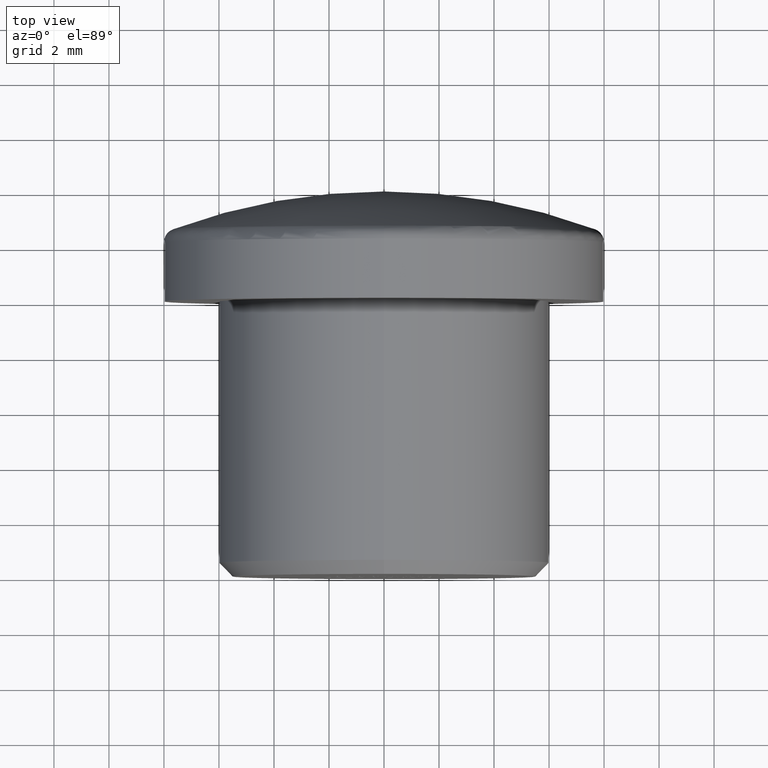
[diagram: clean part render]
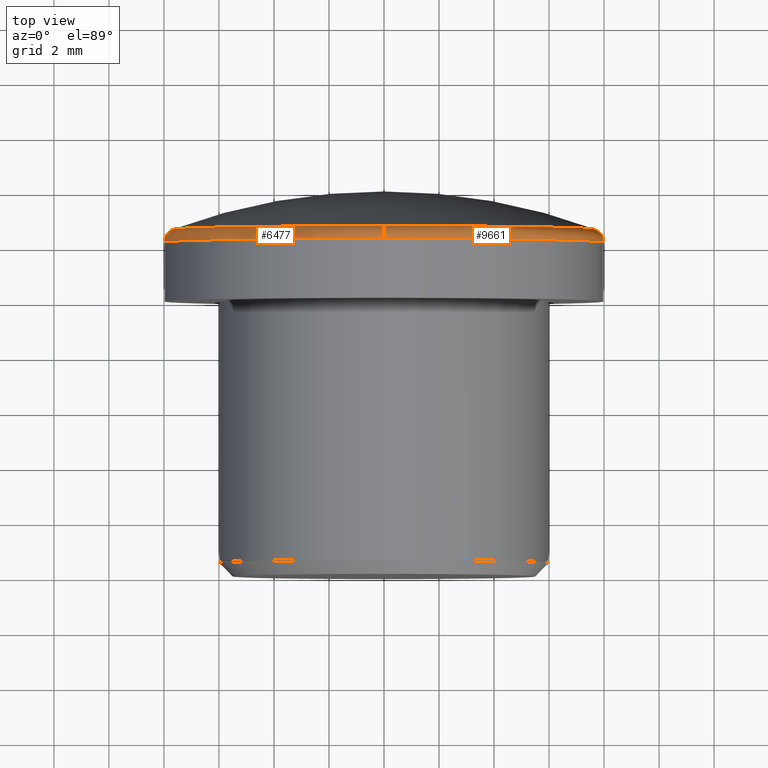
[diagram: same view with one multi-face feature highlighted, each face labeled with its STEP entity id]
A machine part, top view. The highlighted faces form ONE feature: a constant-radius fillet chain: 2 tangent blend faces with common blend radius 0.5 mm. The faces share edges in the B-rep.
Their STEP definitions:
[1] entity #6477 (Torus):
#1005 = ORIENTED_EDGE ( 'NONE', *, *, #7020, .T. ) ;
#1140 = CARTESIAN_POINT ( 'NONE',  ( 0.0000000000000000000, 12.62384527988033500, 0.0000000000000000000 ) ) ;
#1512 = CIRCLE ( 'NONE', #10745, 8.000000000000000000 ) ;
#1554 = DIRECTION ( 'NONE',  ( 0.0000000000000000000, 0.0000000000000000000, -1.000000000000000000 ) ) ;
#1599 = EDGE_CURVE ( 'NONE', #3514, #12723, #1512, .T. ) ;
#2567 = CARTESIAN_POINT ( 'NONE',  ( 0.0000000000000000000, 12.62384527988033500, 0.0000000000000000000 ) ) ;
#3363 = DIRECTION ( 'NONE',  ( -0.0000000000000000000, -1.000000000000000000, -0.0000000000000000000 ) ) ;
#3514 = VERTEX_POINT ( 'NONE', #12573 ) ;
#3549 = DIRECTION ( 'NONE',  ( 0.0000000000000000000, 0.0000000000000000000, 1.000000000000000000 ) ) ;
#3657 = EDGE_CURVE ( 'NONE', #5774, #14178, #13525, .T. ) ;
#3789 = EDGE_CURVE ( 'NONE', #14178, #3514, #14073, .T. ) ;
#4598 = AXIS2_PLACEMENT_3D ( 'NONE', #14996, #3363, #10336 ) ;
#4602 = DIRECTION ( 'NONE',  ( 0.0000000000000000000, 0.0000000000000000000, -1.000000000000000000 ) ) ;
#4621 = ORIENTED_EDGE ( 'NONE', *, *, #1599, .F. ) ;
#4713 = EDGE_CURVE ( 'NONE', #14953, #5774, #9209, .T. ) ;
#4755 = DIRECTION ( 'NONE',  ( 0.0000000000000000000, 1.000000000000000000, 0.0000000000000000000 ) ) ;
#5432 = CARTESIAN_POINT ( 'NONE',  ( 0.0000000000000000000, 12.62384527988033500, -7.673745173745172300 ) ) ;
#5541 = EDGE_LOOP ( 'NONE', ( #10857, #9216, #7227, #1005, #4621 ) ) ;
#5741 = DIRECTION ( 'NONE',  ( -1.000000000000000000, 0.0000000000000000000, 0.0000000000000000000 ) ) ;
#5774 = VERTEX_POINT ( 'NONE', #11785 ) ;
#6477 = ADVANCED_FACE ( 'NONE', ( #9686 ), #13444, .T. ) ;
#6557 = CIRCLE ( 'NONE', #8498, 0.5000000000000004400 ) ;
#7020 = EDGE_CURVE ( 'NONE', #14953, #12723, #6557, .T. ) ;
#7227 = ORIENTED_EDGE ( 'NONE', *, *, #4713, .F. ) ;
#7256 = DIRECTION ( 'NONE',  ( 1.000000000000000000, 0.0000000000000000000, -1.224646799147353200E-016 ) ) ;
#7392 = CARTESIAN_POINT ( 'NONE',  ( 0.0000000000000000000, 12.15500349995852000, -8.000000000000000000 ) ) ;
#7461 = DIRECTION ( 'NONE',  ( -1.224646799147351500E-016, 0.0000000000000000000, -1.000000000000000000 ) ) ;
#8498 = AXIS2_PLACEMENT_3D ( 'NONE', #12665, #5741, #3549 ) ;
#9209 = CIRCLE ( 'NONE', #11203, 7.673745173745172300 ) ;
#9216 = ORIENTED_EDGE ( 'NONE', *, *, #3657, .F. ) ;
#9686 = FACE_OUTER_BOUND ( 'NONE', #5541, .T. ) ;
#10336 = DIRECTION ( 'NONE',  ( 0.0000000000000000000, 0.0000000000000000000, -1.000000000000000000 ) ) ;
#10506 = DIRECTION ( 'NONE',  ( 0.0000000000000000000, 0.0000000000000000000, -1.000000000000000000 ) ) ;
#10641 = AXIS2_PLACEMENT_3D ( 'NONE', #12056, #7256, #7461 ) ;
#10745 = AXIS2_PLACEMENT_3D ( 'NONE', #13779, #11511, #10506 ) ;
#10857 = ORIENTED_EDGE ( 'NONE', *, *, #3789, .F. ) ;
#10860 = DIRECTION ( 'NONE',  ( 0.0000000000000000000, 1.000000000000000000, 0.0000000000000000000 ) ) ;
#11203 = AXIS2_PLACEMENT_3D ( 'NONE', #1140, #4755, #4602 ) ;
#11511 = DIRECTION ( 'NONE',  ( -0.0000000000000000000, -1.000000000000000000, -0.0000000000000000000 ) ) ;
#11785 = CARTESIAN_POINT ( 'NONE',  ( -7.673745173745177600, 12.62384527988033500, 9.397627464499482400E-016 ) ) ;
#12056 = CARTESIAN_POINT ( 'NONE',  ( 9.184850993605147900E-016, 12.15500349995852000, 7.500000000000000000 ) ) ;
#12573 = CARTESIAN_POINT ( 'NONE',  ( 9.797174393178825700E-016, 12.15500349995852000, 8.000000000000000000 ) ) ;
#12665 = CARTESIAN_POINT ( 'NONE',  ( 0.0000000000000000000, 12.15500349995852000, -7.500000000000000000 ) ) ;
#12723 = VERTEX_POINT ( 'NONE', #7392 ) ;
#13409 = CARTESIAN_POINT ( 'NONE',  ( 9.597400928839150100E-016, 12.62384527988033500, 7.673745173745172300 ) ) ;
#13444 = TOROIDAL_SURFACE ( 'NONE', #4598, 7.500000000000000000, 0.5000000000000000000 ) ;
#13525 = CIRCLE ( 'NONE', #14012, 7.673745173745172300 ) ;
#13779 = CARTESIAN_POINT ( 'NONE',  ( 0.0000000000000000000, 12.15500349995852000, 0.0000000000000000000 ) ) ;
#14012 = AXIS2_PLACEMENT_3D ( 'NONE', #2567, #10860, #1554 ) ;
#14073 = CIRCLE ( 'NONE', #10641, 0.5000000000000004400 ) ;
#14178 = VERTEX_POINT ( 'NONE', #13409 ) ;
#14953 = VERTEX_POINT ( 'NONE', #5432 ) ;
#14996 = CARTESIAN_POINT ( 'NONE',  ( 0.0000000000000000000, 12.15500349995852000, 0.0000000000000000000 ) ) ;
[2] entity #9661 (Torus):
#274 = ORIENTED_EDGE ( 'NONE', *, *, #7020, .F. ) ;
#630 = ORIENTED_EDGE ( 'NONE', *, *, #11838, .F. ) ;
#883 = VERTEX_POINT ( 'NONE', #5013 ) ;
#1144 = CARTESIAN_POINT ( 'NONE',  ( 0.0000000000000000000, 12.62384527988033500, 0.0000000000000000000 ) ) ;
#2170 = CARTESIAN_POINT ( 'NONE',  ( 0.0000000000000000000, 12.15500349995852000, 0.0000000000000000000 ) ) ;
#2382 = CARTESIAN_POINT ( 'NONE',  ( 0.0000000000000000000, 12.62384527988033500, 0.0000000000000000000 ) ) ;
#3514 = VERTEX_POINT ( 'NONE', #12573 ) ;
#3549 = DIRECTION ( 'NONE',  ( 0.0000000000000000000, 0.0000000000000000000, 1.000000000000000000 ) ) ;
#3789 = EDGE_CURVE ( 'NONE', #14178, #3514, #14073, .T. ) ;
#4245 = CIRCLE ( 'NONE', #7359, 8.000000000000000000 ) ;
#4472 = DIRECTION ( 'NONE',  ( 0.0000000000000000000, 0.0000000000000000000, -1.000000000000000000 ) ) ;
#5006 = DIRECTION ( 'NONE',  ( -0.0000000000000000000, -1.000000000000000000, -0.0000000000000000000 ) ) ;
#5013 = CARTESIAN_POINT ( 'NONE',  ( 7.673745173745177600, 12.62384527988033500, 0.0000000000000000000 ) ) ;
#5024 = AXIS2_PLACEMENT_3D ( 'NONE', #1144, #8226, #12854 ) ;
#5432 = CARTESIAN_POINT ( 'NONE',  ( 0.0000000000000000000, 12.62384527988033500, -7.673745173745172300 ) ) ;
#5562 = FACE_OUTER_BOUND ( 'NONE', #6006, .T. ) ;
#5741 = DIRECTION ( 'NONE',  ( -1.000000000000000000, 0.0000000000000000000, 0.0000000000000000000 ) ) ;
#6006 = EDGE_LOOP ( 'NONE', ( #11583, #10577, #14883, #274, #630 ) ) ;
#6557 = CIRCLE ( 'NONE', #8498, 0.5000000000000004400 ) ;
#6980 = AXIS2_PLACEMENT_3D ( 'NONE', #2382, #12938, #10588 ) ;
#7020 = EDGE_CURVE ( 'NONE', #14953, #12723, #6557, .T. ) ;
#7256 = DIRECTION ( 'NONE',  ( 1.000000000000000000, 0.0000000000000000000, -1.224646799147353200E-016 ) ) ;
#7341 = DIRECTION ( 'NONE',  ( 0.0000000000000000000, 0.0000000000000000000, -1.000000000000000000 ) ) ;
#7359 = AXIS2_PLACEMENT_3D ( 'NONE', #10794, #5006, #7341 ) ;
#7392 = CARTESIAN_POINT ( 'NONE',  ( 0.0000000000000000000, 12.15500349995852000, -8.000000000000000000 ) ) ;
#7461 = DIRECTION ( 'NONE',  ( -1.224646799147351500E-016, 0.0000000000000000000, -1.000000000000000000 ) ) ;
#7921 = CIRCLE ( 'NONE', #5024, 7.673745173745172300 ) ;
#8226 = DIRECTION ( 'NONE',  ( 0.0000000000000000000, 1.000000000000000000, 0.0000000000000000000 ) ) ;
#8498 = AXIS2_PLACEMENT_3D ( 'NONE', #12665, #5741, #3549 ) ;
#9661 = ADVANCED_FACE ( 'NONE', ( #5562 ), #11379, .T. ) ;
#10577 = ORIENTED_EDGE ( 'NONE', *, *, #3789, .T. ) ;
#10588 = DIRECTION ( 'NONE',  ( 0.0000000000000000000, 0.0000000000000000000, -1.000000000000000000 ) ) ;
#10641 = AXIS2_PLACEMENT_3D ( 'NONE', #12056, #7256, #7461 ) ;
#10794 = CARTESIAN_POINT ( 'NONE',  ( 0.0000000000000000000, 12.15500349995852000, 0.0000000000000000000 ) ) ;
#11379 = TOROIDAL_SURFACE ( 'NONE', #12677, 7.500000000000000000, 0.5000000000000000000 ) ;
#11583 = ORIENTED_EDGE ( 'NONE', *, *, #12435, .F. ) ;
#11838 = EDGE_CURVE ( 'NONE', #883, #14953, #12744, .T. ) ;
#12056 = CARTESIAN_POINT ( 'NONE',  ( 9.184850993605147900E-016, 12.15500349995852000, 7.500000000000000000 ) ) ;
#12435 = EDGE_CURVE ( 'NONE', #14178, #883, #7921, .T. ) ;
#12573 = CARTESIAN_POINT ( 'NONE',  ( 9.797174393178825700E-016, 12.15500349995852000, 8.000000000000000000 ) ) ;
#12665 = CARTESIAN_POINT ( 'NONE',  ( 0.0000000000000000000, 12.15500349995852000, -7.500000000000000000 ) ) ;
#12677 = AXIS2_PLACEMENT_3D ( 'NONE', #2170, #14827, #4472 ) ;
#12723 = VERTEX_POINT ( 'NONE', #7392 ) ;
#12744 = CIRCLE ( 'NONE', #6980, 7.673745173745172300 ) ;
#12854 = DIRECTION ( 'NONE',  ( 0.0000000000000000000, 0.0000000000000000000, -1.000000000000000000 ) ) ;
#12938 = DIRECTION ( 'NONE',  ( 0.0000000000000000000, 1.000000000000000000, 0.0000000000000000000 ) ) ;
#13353 = EDGE_CURVE ( 'NONE', #12723, #3514, #4245, .T. ) ;
#13409 = CARTESIAN_POINT ( 'NONE',  ( 9.597400928839150100E-016, 12.62384527988033500, 7.673745173745172300 ) ) ;
#14073 = CIRCLE ( 'NONE', #10641, 0.5000000000000004400 ) ;
#14178 = VERTEX_POINT ( 'NONE', #13409 ) ;
#14827 = DIRECTION ( 'NONE',  ( -0.0000000000000000000, -1.000000000000000000, -0.0000000000000000000 ) ) ;
#14883 = ORIENTED_EDGE ( 'NONE', *, *, #13353, .F. ) ;
#14953 = VERTEX_POINT ( 'NONE', #5432 ) ;